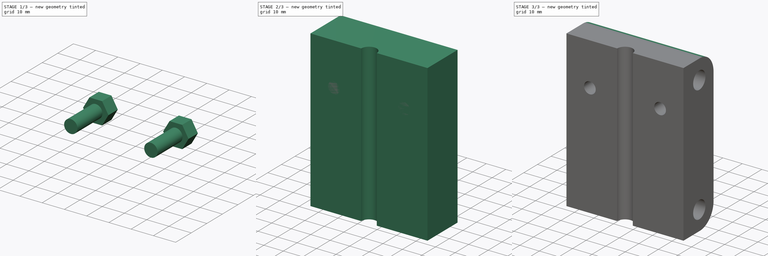
[diagram: build sequence overview — one tinted view per stage of 3, left to right]
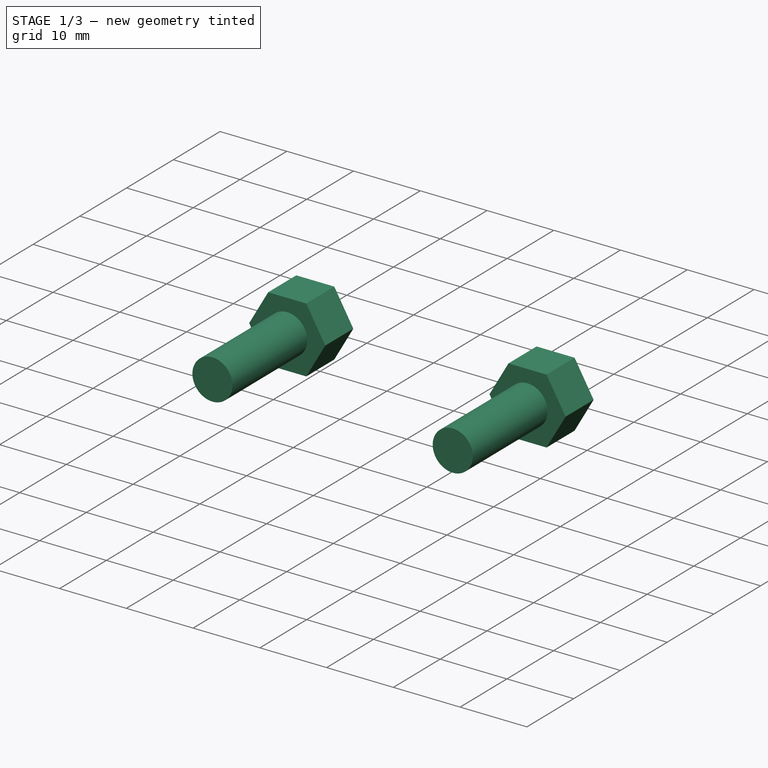
[diagram: stage 1 of 3 — iso view after this stage's code; geometry added in this stage tinted green]
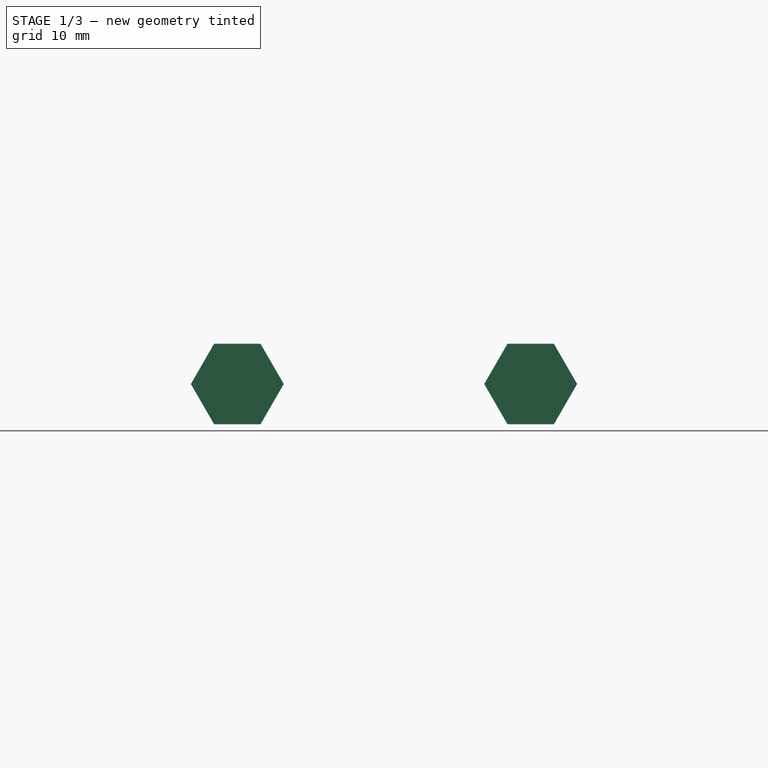
[diagram: stage 1 of 3 — front view after this stage's code; geometry added in this stage tinted green]
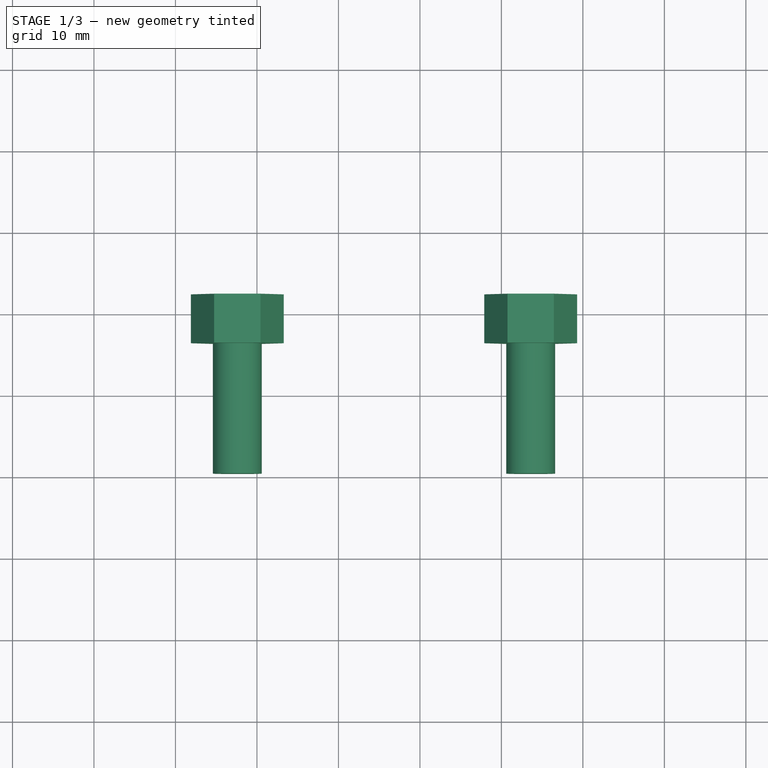
[diagram: stage 1 of 3 — top view after this stage's code; geometry added in this stage tinted green]
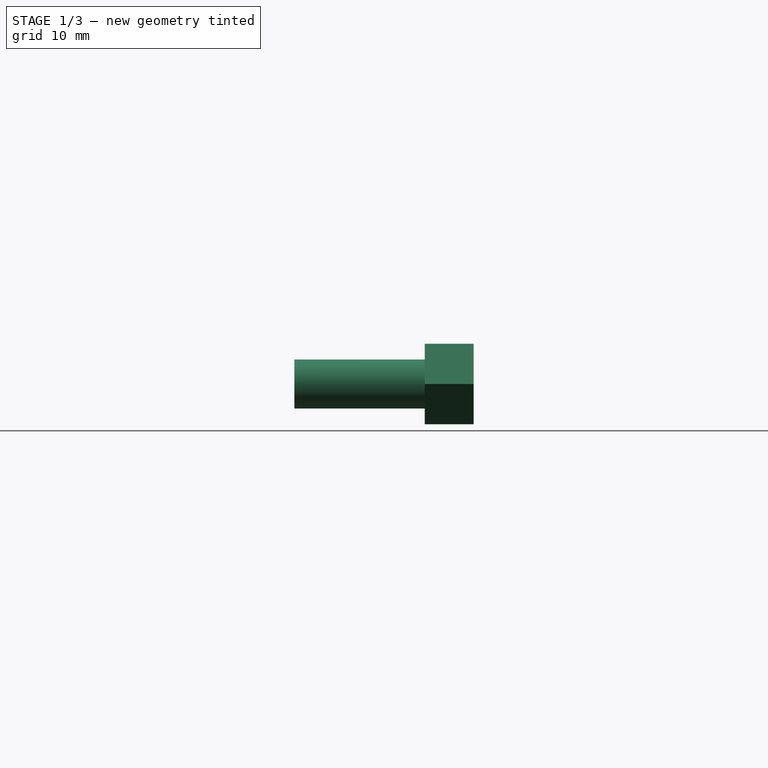
[diagram: stage 1 of 3 — right view after this stage's code; geometry added in this stage tinted green]
FCSTD DOCUMENT  (FreeCAD 0.16R6707 (Git))
Label: Z-Axis_FrameMount
License: All rights reserved
LicenseURL: http://en.wikipedia.org/wiki/All_rights_reserved
objects: Sketcher::SketchObject×4, PartDesign::Pad×4, Part::MultiFuse×1, Part::Cut×1, PartDesign::Fillet×1
note: 15 computed .brp shape members not serialized (recipe doc carries the construction recipe); baked Part::Feature solids carry a one-line shape summary decoded from their .brp

FEATURE [PartDesign::Pad] Pad002  label="MotorMount"
  Length = 22
  Length2 = 100
  Placement = pos=(0,12.4101,0) rot=(0,0.707107,0.707107;3.14159rad)
  Reversed = true
  Sketch = -> Sketch002
  Type = 0
FEATURE [PartDesign::Pad] Pad003  label="MotorFlush"
  Length = 6
  Length2 = 100
  Placement = pos=(0,12.4101,0) rot=(0,0.707107,0.707107;3.14159rad)
  Reversed = true
  Sketch = -> Sketch003
  Type = 0
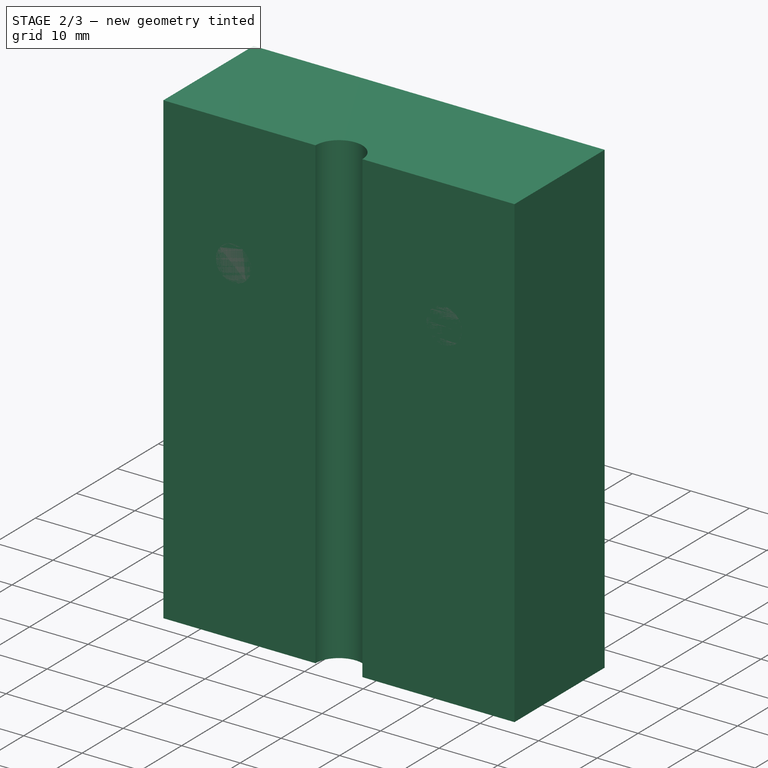
[diagram: stage 2 of 3 — iso view after this stage's code; geometry added in this stage tinted green]
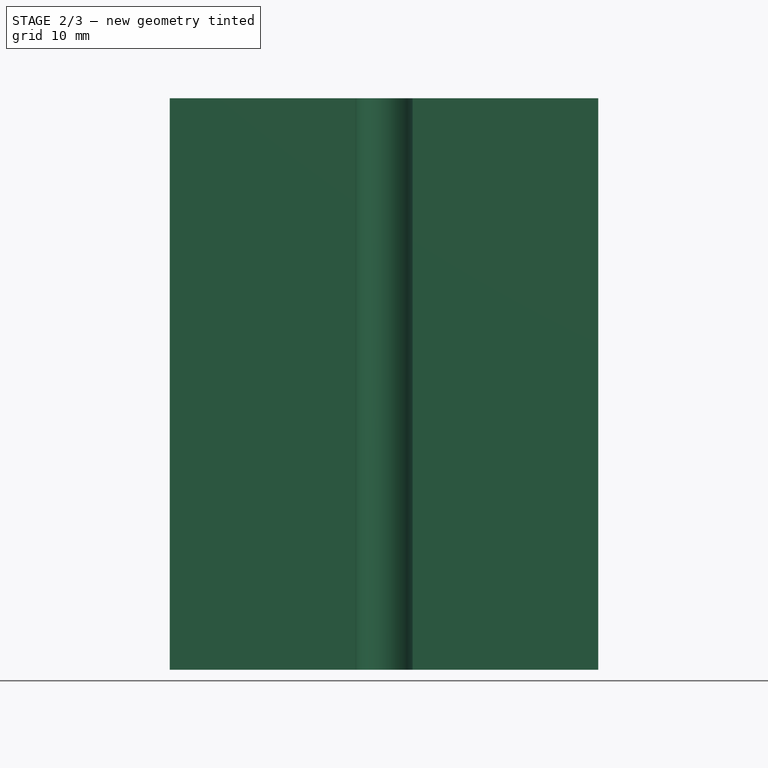
[diagram: stage 2 of 3 — front view after this stage's code; geometry added in this stage tinted green]
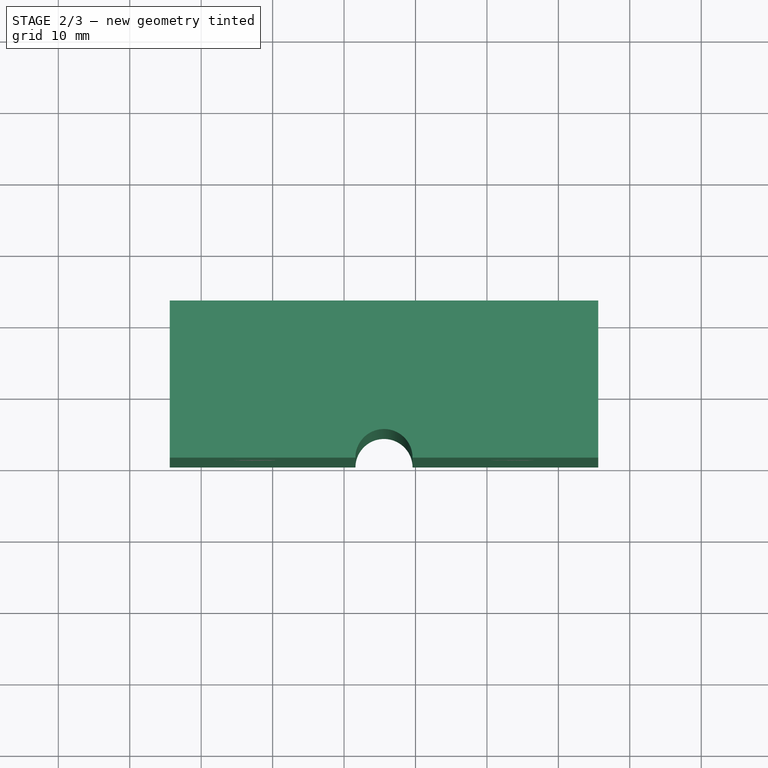
[diagram: stage 2 of 3 — top view after this stage's code; geometry added in this stage tinted green]
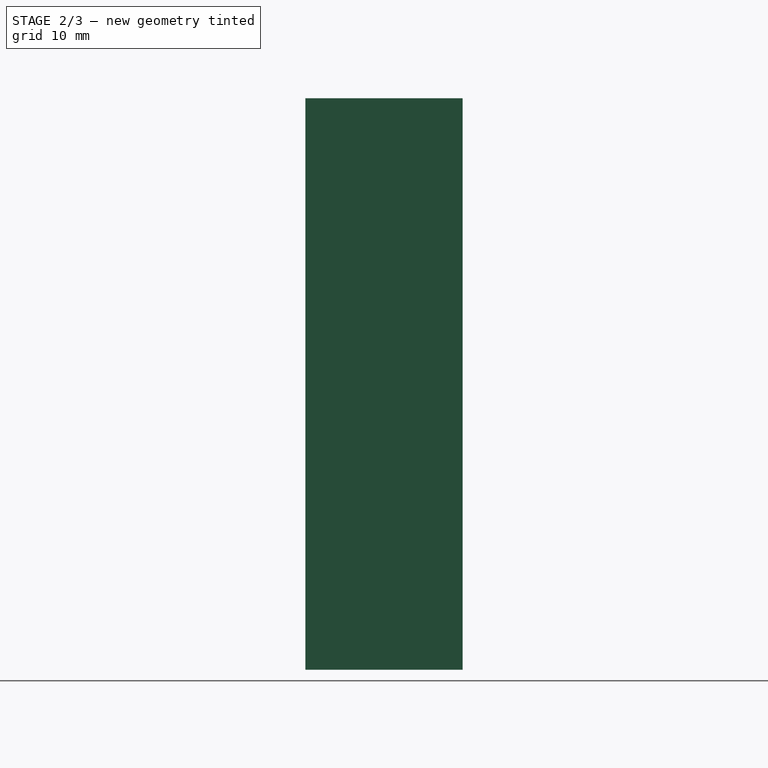
[diagram: stage 2 of 3 — right view after this stage's code; geometry added in this stage tinted green]
FEATURE [Sketcher::SketchObject] Sketch
  sketch-geometry (6):
    g0: LineSegment StartX=-24.4072 StartY=12.4101 StartZ=0 EndX=35.5928 EndY=12.4101 EndZ=0
    g1: LineSegment StartX=35.5928 StartY=12.4101 StartZ=0 EndX=35.5928 EndY=-9.58994 EndZ=0
    g2: LineSegment StartX=-24.4072 StartY=-9.58994 StartZ=0 EndX=-24.4072 EndY=12.4101 EndZ=0
    g3: ArcOfCircle CenterX=5.59279 CenterY=-9.58994 CenterZ=0 NormalX=0 NormalY=0 NormalZ=1 Radius=4 StartAngle=0 EndAngle=3.14159
    g4: LineSegment StartX=-24.4072 StartY=-9.58994 StartZ=0 EndX=1.59279 EndY=-9.58994 EndZ=0
    g5: LineSegment StartX=9.59279 StartY=-9.58994 StartZ=0 EndX=35.5928 EndY=-9.58994 EndZ=0
  constraints (17):
    c: Coincident(g0,g1)
    c: Coincident(g2,g0)
    c: Horizontal(g0)
    c: Vertical(g1)
    c: Vertical(g2)
    c: DistanceX(g0,g0) = -60
    c: DistanceY(g1) = -22
    c: Horizontal(g4)
    c: Coincident(g5,g1)
    c: Horizontal(g5)
    c: Coincident(g5,g3)
    c: Coincident(g3,g4)
    c: Coincident(g4,g2)
    c: Symmetric(g3,g3,g3)
    c: Equal(g2,g1)
    c: Equal(g5,g4)
    c: Radius(g3) = 4
FEATURE [Sketcher::SketchObject] Sketch001
  Placement = pos=(35.5928,0,0) rot=(0.57735,0.57735,0.57735;2.0944rad)
  sketch-geometry (2):
    g0: Circle CenterX=2 CenterY=70 CenterZ=0 NormalX=0 NormalY=0 NormalZ=1 Radius=4.5
    g1: Circle CenterX=2 CenterY=10 CenterZ=0 NormalX=0 NormalY=0 NormalZ=1 Radius=4.5
  constraints (5):
    c: Radius(g1) = 4.5
    c: Equal(g1,g0)
    c: DistanceX(g0,g1) = 0
    c: DistanceY(g0,g1) = -60
    c: DistanceX(g0) = 2
FEATURE [Sketcher::SketchObject] Sketch002
  Placement = pos=(0,12.4101,0) rot=(0,0.707107,0.707107;3.14159rad)
  sketch-geometry (2):
    g0: Circle CenterX=-23.5928 CenterY=58 CenterZ=0 NormalX=0 NormalY=0 NormalZ=1 Radius=3
    g1: Circle CenterX=12.4072 CenterY=58 CenterZ=0 NormalX=0 NormalY=0 NormalZ=1 Radius=3
  constraints (4):
    c: Radius(g1) = 3
    c: Equal(g1,g0)
    c: DistanceY(g1,g0) = 0
    c: DistanceX(g0,g1) = 36
FEATURE [Sketcher::SketchObject] Sketch003
  Placement = pos=(0,12.4101,0) rot=(0,0.707107,0.707107;3.14159rad)
  sketch-geometry (14):
    g0: LineSegment StartX=-20.7428 StartY=53.0637 StartZ=0 EndX=-17.8928 EndY=58 EndZ=0
    g1: LineSegment StartX=-17.8928 StartY=58 StartZ=0 EndX=-20.7428 EndY=62.9363 EndZ=0
    g2: LineSegment StartX=-20.7428 StartY=62.9363 StartZ=0 EndX=-26.4428 EndY=62.9363 EndZ=0
    g3: LineSegment StartX=-26.4428 StartY=62.9363 StartZ=0 EndX=-29.2928 EndY=58 EndZ=0
    g4: LineSegment StartX=-29.2928 StartY=58 StartZ=0 EndX=-26.4428 EndY=53.0637 EndZ=0
    g5: LineSegment StartX=-26.4428 StartY=53.0637 StartZ=0 EndX=-20.7428 EndY=53.0637 EndZ=0
    g6: Circle [constr] CenterX=-23.5928 CenterY=58 CenterZ=0 NormalX=0 NormalY=0 NormalZ=1 Radius=5.7
    g7: LineSegment StartX=15.2572 StartY=53.0637 StartZ=0 EndX=18.1072 EndY=58 EndZ=0
    g8: LineSegment StartX=18.1072 StartY=58 StartZ=0 EndX=15.2572 EndY=62.9363 EndZ=0
    g9: LineSegment StartX=15.2572 StartY=62.9363 StartZ=0 EndX=9.55721 EndY=62.9363 EndZ=0
    g10: LineSegment StartX=9.55721 StartY=62.9363 StartZ=0 EndX=6.70721 EndY=58 EndZ=0
    g11: LineSegment StartX=6.70721 StartY=58 StartZ=0 EndX=9.55721 EndY=53.0637 EndZ=0
    g12: LineSegment StartX=9.55721 StartY=53.0637 StartZ=0 EndX=15.2572 EndY=53.0637 EndZ=0
    g13: Circle [constr] CenterX=12.4072 CenterY=58 CenterZ=0 NormalX=0 NormalY=0 NormalZ=1 Radius=5.7
  constraints (31):
    c: Coincident(g0,g1)
    c: Coincident(g1,g2)
    c: Coincident(g2,g3)
    c: Coincident(g3,g4)
    c: Coincident(g4,g5)
    c: Coincident(g5,g0)
    c: Equal(g0, g1-g5) x5
    c: PointOnObject(g0,g6)
    c: PointOnObject(g1,g6)
    c: PointOnObject(g2,g6)
    c: PointOnObject(g3,g6)
    c: PointOnObject(g4,g6)
    c: PointOnObject(g5,g6)
    c: Coincident(g7,g8)
    c: Coincident(g8,g9)
    c: Coincident(g9,g10)
    c: Coincident(g10,g11)
    c: Coincident(g11,g12)
    c: Coincident(g12,g7)
    c: Equal(g7, g8-g12) x5
    c: PointOnObject(g7,g13)
    c: PointOnObject(g8,g13)
    c: PointOnObject(g9,g13)
    c: PointOnObject(g10,g13)
    c: PointOnObject(g11,g13)
    c: PointOnObject(g12,g13)
    c: DistanceX(g13,g6) = -36
    c: DistanceY(g6,g13) = 0
    c: Equal(g13,g6)
    c: Parallel(g9,g2)
    c: Radius(g13) = 5.7
FEATURE [PartDesign::Pad] Pad  label="Base"
  Length = 80
  Length2 = 100
  Sketch = -> Sketch
  Type = 0
FEATURE [PartDesign::Pad] Pad001  label="FrameMount"
  Length = 60
  Length2 = 100
  Placement = pos=(35.5928,0,0) rot=(0.57735,0.57735,0.57735;2.0944rad)
  Reversed = true
  Sketch = -> Sketch001
  Type = 0
FEATURE [Part::MultiFuse] Fusion  label="CutBlock"
  Shapes = -> [Pad003,Pad002,Pad001]
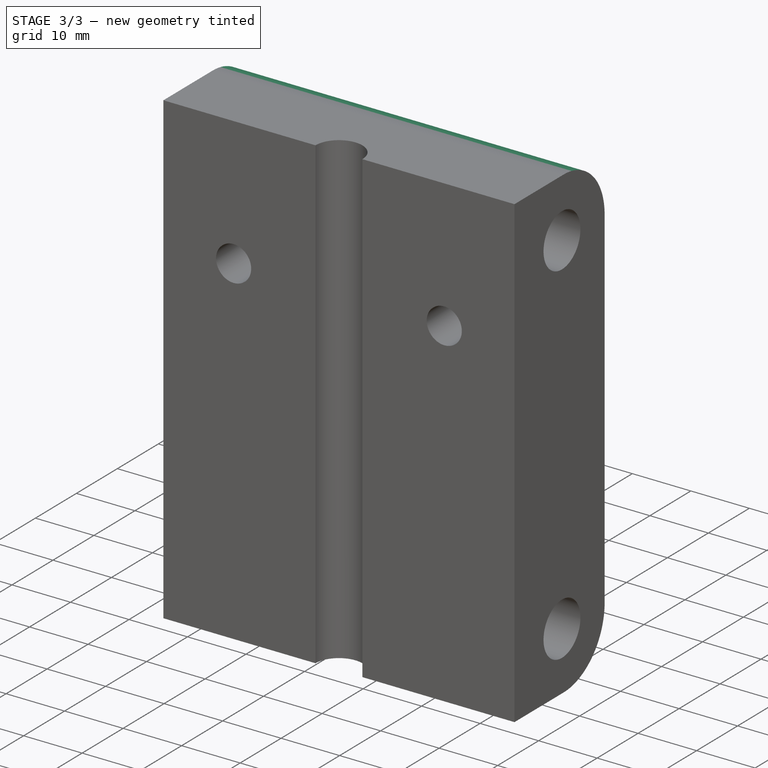
[diagram: stage 3 of 3 — iso view after this stage's code; geometry added in this stage tinted green]
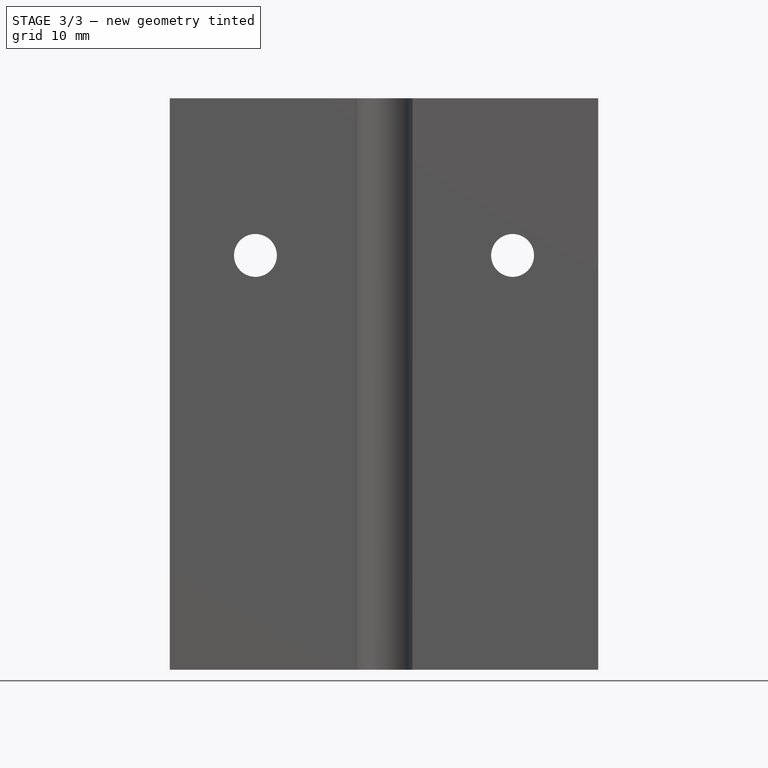
[diagram: stage 3 of 3 — front view after this stage's code; geometry added in this stage tinted green]
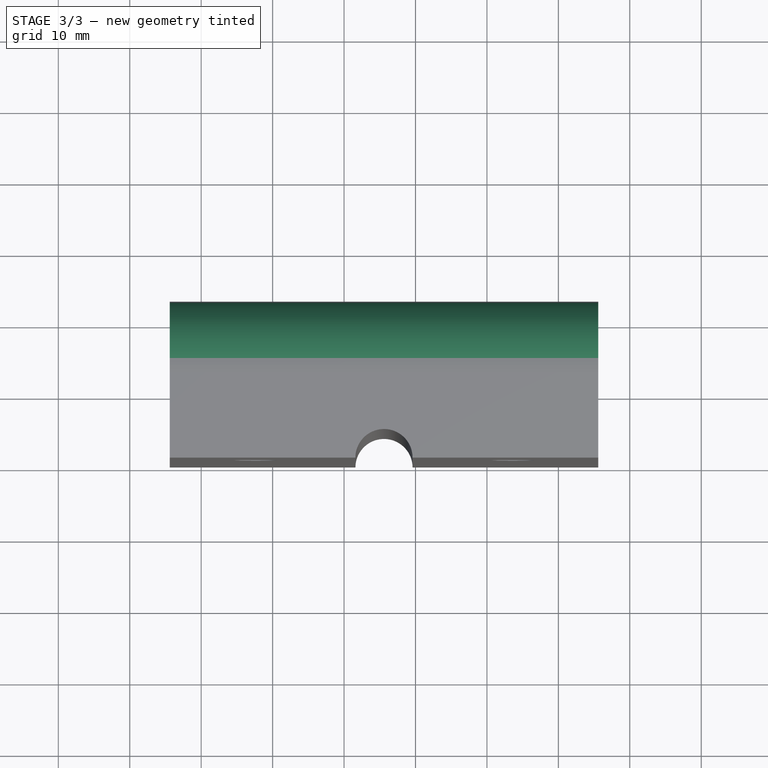
[diagram: stage 3 of 3 — top view after this stage's code; geometry added in this stage tinted green]
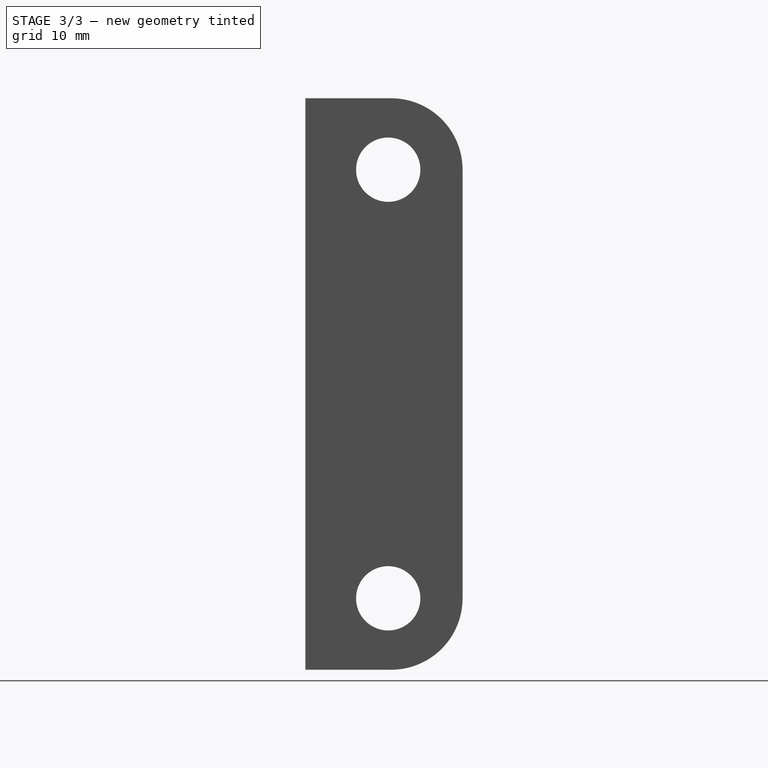
[diagram: stage 3 of 3 — right view after this stage's code; geometry added in this stage tinted green]
FEATURE [Part::Cut] Cut  label="Part"
  Base = -> Pad
  Tool = -> Fusion
FEATURE [PartDesign::Fillet] Fillet
  Base = -> Cut [Edge17,Edge14]
  Radius = 10
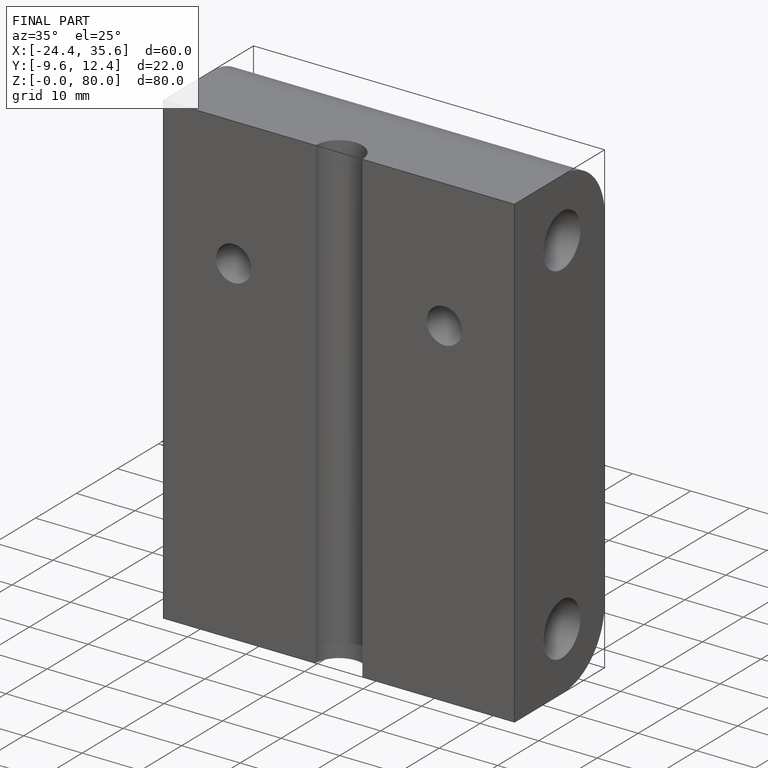
[diagram: finished part — iso view with bounding-box wireframe]
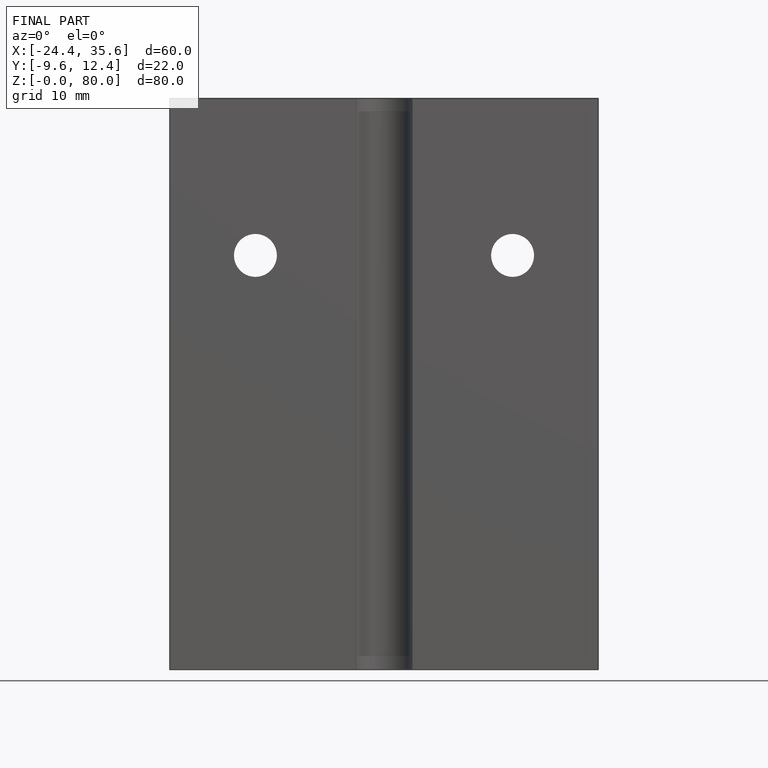
[diagram: finished part — front view with bounding-box wireframe]
